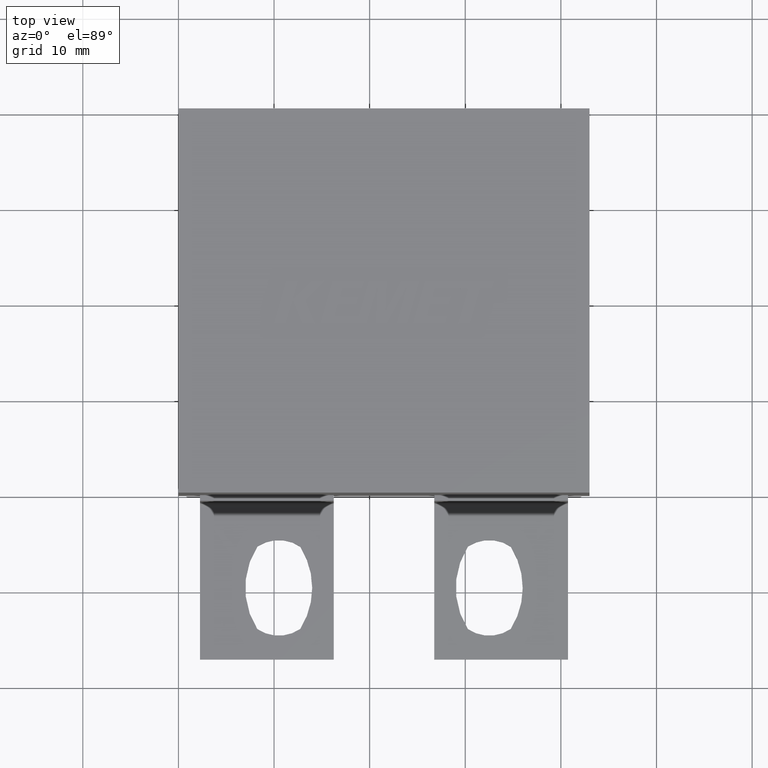
[diagram: clean part render]
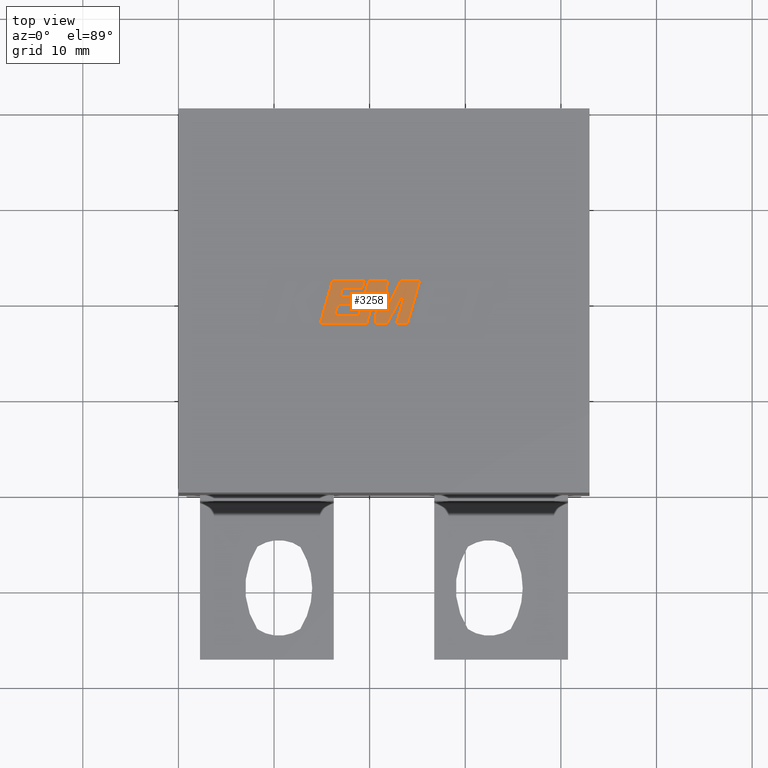
[diagram: same view with one face highlighted and labeled with its STEP entity id]
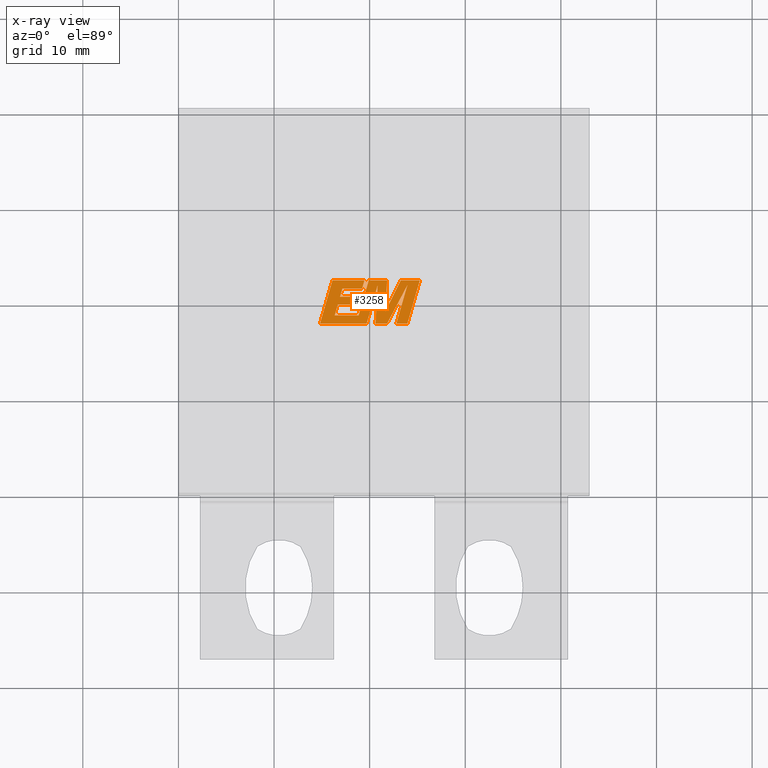
[diagram: x-ray of the same camera — body ghosted, the highlighted face saturated]
A machine part, top view. The second image highlights one B-rep face of the part: STEP entity #3258.
The next image is the same camera in x-ray: the body ghosted, the highlighted face saturated — about 0% of this face is hidden behind the body in this view.
In plain terms, the highlighted planar face has unit normal (0, 0, -1).
Its self-contained STEP definition (entity closure, byte-faithful):
#1 = VECTOR ( 'NONE', #788, 1000.000000000000000 ) ;
#16 = LINE ( 'NONE', #998, #54 ) ;
#17 = EDGE_CURVE ( 'NONE', #3460, #3063, #1209, .T. ) ;
#30 = ORIENTED_EDGE ( 'NONE', *, *, #2800, .T. ) ;
#35 = CARTESIAN_POINT ( 'NONE',  ( 21.65369082282158100, 18.95966520549735200, 20.40500000000000100 ) ) ;
#54 = VECTOR ( 'NONE', #1228, 1000.000000000000000 ) ;
#98 = CARTESIAN_POINT ( 'NONE',  ( 16.34118333098680900, 18.52843981272264200, 20.40500000000000100 ) ) ;
#158 = VERTEX_POINT ( 'NONE', #1292 ) ;
#187 = LINE ( 'NONE', #226, #861 ) ;
#190 = LINE ( 'NONE', #1899, #2466 ) ;
#226 = CARTESIAN_POINT ( 'NONE',  ( 16.34118333098680900, 18.52843981272264200, 20.40500000000000100 ) ) ;
#277 = DIRECTION ( 'NONE',  ( 0.2759782365590804900, 0.9611638845408936300, 0.0000000000000000000 ) ) ;
#318 = VERTEX_POINT ( 'NONE', #1316 ) ;
#353 = VECTOR ( 'NONE', #3078, 1000.000000000000100 ) ;
#382 = ORIENTED_EDGE ( 'NONE', *, *, #431, .T. ) ;
#412 = EDGE_CURVE ( 'NONE', #3278, #3460, #2940, .T. ) ;
#422 = VERTEX_POINT ( 'NONE', #1138 ) ;
#427 = VERTEX_POINT ( 'NONE', #2712 ) ;
#431 = EDGE_CURVE ( 'NONE', #2274, #1600, #1707, .T. ) ;
#443 = ORIENTED_EDGE ( 'NONE', *, *, #3480, .T. ) ;
#444 = LINE ( 'NONE', #1973, #1118 ) ;
#447 = LINE ( 'NONE', #1668, #1798 ) ;
#477 = CARTESIAN_POINT ( 'NONE',  ( 21.82763981081164700, 22.19109090115733800, 20.40500000000000100 ) ) ;
#515 = DIRECTION ( 'NONE',  ( 0.0000000000000000000, 0.0000000000000000000, -1.000000000000000000 ) ) ;
#533 = CARTESIAN_POINT ( 'NONE',  ( 19.45021176289241200, 22.19109090115733800, 20.40500000000000100 ) ) ;
#555 = CARTESIAN_POINT ( 'NONE',  ( 19.67990450997458800, 17.66789999999986400, 20.40500000000000100 ) ) ;
#559 = LINE ( 'NONE', #2688, #2542 ) ;
#569 = EDGE_CURVE ( 'NONE', #1823, #3278, #3483, .T. ) ;
#598 = EDGE_CURVE ( 'NONE', #1600, #2154, #190, .T. ) ;
#622 = VERTEX_POINT ( 'NONE', #1077 ) ;
#687 = VERTEX_POINT ( 'NONE', #2726 ) ;
#722 = ORIENTED_EDGE ( 'NONE', *, *, #1932, .T. ) ;
#737 = VECTOR ( 'NONE', #2657, 1000.000000000000000 ) ;
#739 = DIRECTION ( 'NONE',  ( -1.000000000000000000, 0.0000000000000000000, 0.0000000000000000000 ) ) ;
#788 = DIRECTION ( 'NONE',  ( -1.000000000000000000, 0.0000000000000000000, 0.0000000000000000000 ) ) ;
#857 = EDGE_CURVE ( 'NONE', #622, #422, #2385, .T. ) ;
#861 = VECTOR ( 'NONE', #1839, 1000.000000000000200 ) ;
#862 = CARTESIAN_POINT ( 'NONE',  ( 20.61042077413764800, 17.66789999999986800, 20.40500000000000100 ) ) ;
#870 = CARTESIAN_POINT ( 'NONE',  ( 19.20567927335351000, 21.33012473820824400, 20.40500000000000100 ) ) ;
#872 = EDGE_LOOP ( 'NONE', ( #1493, #3118, #2162, #30, #1085, #2519, #443, #1146, #2462, #722, #2283, #3115, #1851, #1273, #382, #1297, #3004, #3163, #2085, #1655, #3222, #3255, #2039 ) ) ;
#936 = CARTESIAN_POINT ( 'NONE',  ( 18.84146614692435800, 20.48881194576375400, 20.40500000000000100 ) ) ;
#939 = CARTESIAN_POINT ( 'NONE',  ( 16.90005972271343300, 20.48881194576375400, 20.40500000000000100 ) ) ;
#969 = VECTOR ( 'NONE', #2109, 1000.000000000000100 ) ;
#984 = VECTOR ( 'NONE', #277, 1000.000000000000000 ) ;
#993 = FACE_OUTER_BOUND ( 'NONE', #872, .T. ) ;
#998 = CARTESIAN_POINT ( 'NONE',  ( 20.83613884040525800, 21.69477796810506500, 20.40500000000000100 ) ) ;
#1020 = EDGE_CURVE ( 'NONE', #1346, #318, #1700, .T. ) ;
#1022 = CARTESIAN_POINT ( 'NONE',  ( 16.66149613646253900, 19.65262910936985800, 20.40500000000000100 ) ) ;
#1046 = VECTOR ( 'NONE', #1681, 1000.000000000000000 ) ;
#1062 = CARTESIAN_POINT ( 'NONE',  ( -0.06707117159376017900, 1.023740749040429100, 20.40499999999999400 ) ) ;
#1074 = CARTESIAN_POINT ( 'NONE',  ( 17.14486727691953000, 21.33012473820824400, 20.40500000000000100 ) ) ;
#1077 = CARTESIAN_POINT ( 'NONE',  ( 23.95230520040987800, 21.71417002716459500, 20.40500000000000100 ) ) ;
#1084 = LINE ( 'NONE', #1116, #1046 ) ;
#1085 = ORIENTED_EDGE ( 'NONE', *, *, #2872, .T. ) ;
#1116 = CARTESIAN_POINT ( 'NONE',  ( 21.82763981081164700, 22.19109090115733800, 20.40500000000000100 ) ) ;
#1118 = VECTOR ( 'NONE', #1656, 1000.000000000000000 ) ;
#1125 = DIRECTION ( 'NONE',  ( -0.4443210308329073600, -0.8958676361827023800, 0.0000000000000000000 ) ) ;
#1129 = EDGE_CURVE ( 'NONE', #1250, #3215, #559, .T. ) ;
#1138 = CARTESIAN_POINT ( 'NONE',  ( 22.79034952489388000, 17.66789999999986800, 20.40500000000000100 ) ) ;
#1145 = LINE ( 'NONE', #1713, #353 ) ;
#1146 = ORIENTED_EDGE ( 'NONE', *, *, #3124, .T. ) ;
#1199 = EDGE_CURVE ( 'NONE', #2154, #687, #2005, .T. ) ;
#1209 = LINE ( 'NONE', #870, #2397 ) ;
#1228 = DIRECTION ( 'NONE',  ( -0.05596501978068312000, -0.9984327301130245800, 0.0000000000000000000 ) ) ;
#1250 = VERTEX_POINT ( 'NONE', #35 ) ;
#1254 = CARTESIAN_POINT ( 'NONE',  ( 25.24021298723882700, 22.19109090115733800, 20.40500000000000100 ) ) ;
#1269 = LINE ( 'NONE', #1833, #1 ) ;
#1273 = ORIENTED_EDGE ( 'NONE', *, *, #3457, .T. ) ;
#1292 = CARTESIAN_POINT ( 'NONE',  ( 19.90137283075741300, 22.19109090115733800, 20.40500000000000100 ) ) ;
#1297 = ORIENTED_EDGE ( 'NONE', *, *, #598, .T. ) ;
#1299 = VERTEX_POINT ( 'NONE', #2753 ) ;
#1313 = PLANE ( 'NONE',  #1937 ) ;
#1316 = CARTESIAN_POINT ( 'NONE',  ( 23.25637222146379900, 22.19109090115733800, 20.40500000000000100 ) ) ;
#1325 = VECTOR ( 'NONE', #3326, 1000.000000000000100 ) ;
#1327 = CARTESIAN_POINT ( 'NONE',  ( 17.14486727691953000, 21.33012473820824400, 20.40500000000000100 ) ) ;
#1346 = VERTEX_POINT ( 'NONE', #2228 ) ;
#1410 = EDGE_CURVE ( 'NONE', #1299, #1346, #1145, .T. ) ;
#1438 = VERTEX_POINT ( 'NONE', #2020 ) ;
#1439 = LINE ( 'NONE', #533, #737 ) ;
#1446 = DIRECTION ( 'NONE',  ( -0.2765379750249964400, -0.9610029908221277000, 0.0000000000000000000 ) ) ;
#1454 = DIRECTION ( 'NONE',  ( -1.000000000000000000, 0.0000000000000000000, 0.0000000000000000000 ) ) ;
#1488 = DIRECTION ( 'NONE',  ( 1.000000000000000000, 0.0000000000000000000, 0.0000000000000000000 ) ) ;
#1492 = EDGE_CURVE ( 'NONE', #422, #1299, #2494, .T. ) ;
#1493 = ORIENTED_EDGE ( 'NONE', *, *, #1020, .T. ) ;
#1533 = EDGE_CURVE ( 'NONE', #1556, #2950, #1269, .T. ) ;
#1534 = CARTESIAN_POINT ( 'NONE',  ( 18.60262749600601500, 19.65262910936985800, 20.40500000000000100 ) ) ;
#1556 = VERTEX_POINT ( 'NONE', #2676 ) ;
#1559 = CARTESIAN_POINT ( 'NONE',  ( 14.80703765007827100, 17.66789999999986400, 20.40500000000000100 ) ) ;
#1600 = VERTEX_POINT ( 'NONE', #1559 ) ;
#1610 = DIRECTION ( 'NONE',  ( 1.000000000000000000, 0.0000000000000000000, 0.0000000000000000000 ) ) ;
#1655 = ORIENTED_EDGE ( 'NONE', *, *, #3166, .T. ) ;
#1656 = DIRECTION ( 'NONE',  ( -0.2762517575166429900, -0.9610853065513830200, 0.0000000000000000000 ) ) ;
#1663 = VECTOR ( 'NONE', #3195, 1000.000000000000100 ) ;
#1668 = CARTESIAN_POINT ( 'NONE',  ( 23.25637222146379900, 22.19109090115733800, 20.40500000000000100 ) ) ;
#1681 = DIRECTION ( 'NONE',  ( -1.000000000000000000, 0.0000000000000000000, 0.0000000000000000000 ) ) ;
#1683 = LINE ( 'NONE', #1534, #969 ) ;
#1684 = CARTESIAN_POINT ( 'NONE',  ( 23.95230520040987800, 21.71417002716459500, 20.40500000000000100 ) ) ;
#1690 = VECTOR ( 'NONE', #1454, 1000.000000000000000 ) ;
#1700 = LINE ( 'NONE', #1254, #3268 ) ;
#1707 = LINE ( 'NONE', #3031, #2685 ) ;
#1713 = CARTESIAN_POINT ( 'NONE',  ( 23.93976225156585600, 17.66789999999986800, 20.40500000000000100 ) ) ;
#1722 = VECTOR ( 'NONE', #3207, 1000.000000000000000 ) ;
#1798 = VECTOR ( 'NONE', #1125, 1000.000000000000100 ) ;
#1823 = VERTEX_POINT ( 'NONE', #3306 ) ;
#1833 = CARTESIAN_POINT ( 'NONE',  ( 18.84859032180306200, 18.52843981272264200, 20.40500000000000100 ) ) ;
#1837 = LINE ( 'NONE', #1022, #2469 ) ;
#1839 = DIRECTION ( 'NONE',  ( 0.2740217765954066100, 0.9617234872620595800, 0.0000000000000000000 ) ) ;
#1851 = ORIENTED_EDGE ( 'NONE', *, *, #17, .T. ) ;
#1899 = CARTESIAN_POINT ( 'NONE',  ( 14.80703765007827100, 17.66789999999986400, 20.40500000000000100 ) ) ;
#1917 = DIRECTION ( 'NONE',  ( 0.05375259206908346300, 0.9985542843760947300, 0.0000000000000000000 ) ) ;
#1932 = EDGE_CURVE ( 'NONE', #2696, #1823, #2200, .T. ) ;
#1937 = AXIS2_PLACEMENT_3D ( 'NONE', #1062, #515, #2948 ) ;
#1965 = VERTEX_POINT ( 'NONE', #3110 ) ;
#1973 = CARTESIAN_POINT ( 'NONE',  ( 19.90137283075741300, 22.19109090115733800, 20.40500000000000100 ) ) ;
#1978 = CARTESIAN_POINT ( 'NONE',  ( 16.10862990775428500, 22.19109090115733800, 20.40500000000000100 ) ) ;
#2005 = LINE ( 'NONE', #555, #984 ) ;
#2020 = CARTESIAN_POINT ( 'NONE',  ( 18.60262749600601500, 19.65262910936985800, 20.40500000000000100 ) ) ;
#2039 = ORIENTED_EDGE ( 'NONE', *, *, #1410, .T. ) ;
#2042 = EDGE_CURVE ( 'NONE', #1438, #2696, #1683, .T. ) ;
#2054 = CARTESIAN_POINT ( 'NONE',  ( 16.66149613646253900, 19.65262910936985800, 20.40500000000000100 ) ) ;
#2059 = CARTESIAN_POINT ( 'NONE',  ( 19.45021176289241200, 22.19109090115733800, 20.40500000000000100 ) ) ;
#2085 = ORIENTED_EDGE ( 'NONE', *, *, #2265, .T. ) ;
#2109 = DIRECTION ( 'NONE',  ( 0.2746459304916928400, 0.9615454294334471200, 0.0000000000000000000 ) ) ;
#2154 = VERTEX_POINT ( 'NONE', #2869 ) ;
#2162 = ORIENTED_EDGE ( 'NONE', *, *, #1129, .T. ) ;
#2200 = LINE ( 'NONE', #936, #1690 ) ;
#2228 = CARTESIAN_POINT ( 'NONE',  ( 25.24021298723882700, 22.19109090115733800, 20.40500000000000100 ) ) ;
#2265 = EDGE_CURVE ( 'NONE', #1965, #427, #3283, .T. ) ;
#2274 = VERTEX_POINT ( 'NONE', #1978 ) ;
#2283 = ORIENTED_EDGE ( 'NONE', *, *, #569, .T. ) ;
#2353 = CARTESIAN_POINT ( 'NONE',  ( 18.84146614692435800, 20.48881194576375400, 20.40500000000000100 ) ) ;
#2385 = LINE ( 'NONE', #1684, #1325 ) ;
#2391 = LINE ( 'NONE', #3183, #1663 ) ;
#2397 = VECTOR ( 'NONE', #2783, 1000.000000000000100 ) ;
#2400 = DIRECTION ( 'NONE',  ( 0.2793947940878301900, 0.9601763114327591700, 0.0000000000000000000 ) ) ;
#2462 = ORIENTED_EDGE ( 'NONE', *, *, #2042, .T. ) ;
#2466 = VECTOR ( 'NONE', #2673, 1000.000000000000000 ) ;
#2469 = VECTOR ( 'NONE', #1610, 1000.000000000000000 ) ;
#2494 = LINE ( 'NONE', #2652, #2921 ) ;
#2519 = ORIENTED_EDGE ( 'NONE', *, *, #1533, .T. ) ;
#2542 = VECTOR ( 'NONE', #1917, 1000.000000000000000 ) ;
#2612 = VERTEX_POINT ( 'NONE', #2054 ) ;
#2652 = CARTESIAN_POINT ( 'NONE',  ( 22.79034952489388000, 17.66789999999986800, 20.40500000000000100 ) ) ;
#2657 = DIRECTION ( 'NONE',  ( -1.000000000000000000, 0.0000000000000000000, 0.0000000000000000000 ) ) ;
#2673 = DIRECTION ( 'NONE',  ( 1.000000000000000000, 0.0000000000000000000, 0.0000000000000000000 ) ) ;
#2676 = CARTESIAN_POINT ( 'NONE',  ( 18.84859032180306200, 18.52843981272264200, 20.40500000000000100 ) ) ;
#2682 = CARTESIAN_POINT ( 'NONE',  ( 19.20567927335351000, 21.33012473820824400, 20.40500000000000100 ) ) ;
#2685 = VECTOR ( 'NONE', #1446, 1000.000000000000100 ) ;
#2688 = CARTESIAN_POINT ( 'NONE',  ( 21.65369082282158100, 18.95966520549735200, 20.40500000000000100 ) ) ;
#2696 = VERTEX_POINT ( 'NONE', #2353 ) ;
#2712 = CARTESIAN_POINT ( 'NONE',  ( 21.81626301737630400, 17.66789999999986800, 20.40500000000000100 ) ) ;
#2726 = CARTESIAN_POINT ( 'NONE',  ( 20.83613884040525800, 21.69477796810506500, 20.40500000000000100 ) ) ;
#2731 = DIRECTION ( 'NONE',  ( 1.000000000000000000, 0.0000000000000000000, 0.0000000000000000000 ) ) ;
#2753 = CARTESIAN_POINT ( 'NONE',  ( 23.93976225156585600, 17.66789999999986800, 20.40500000000000100 ) ) ;
#2783 = DIRECTION ( 'NONE',  ( 0.2732148821746313000, 0.9619530280415474800, 0.0000000000000000000 ) ) ;
#2800 = EDGE_CURVE ( 'NONE', #3215, #158, #1084, .T. ) ;
#2803 = EDGE_CURVE ( 'NONE', #318, #1250, #447, .T. ) ;
#2869 = CARTESIAN_POINT ( 'NONE',  ( 19.67990450997458800, 17.66789999999986400, 20.40500000000000100 ) ) ;
#2872 = EDGE_CURVE ( 'NONE', #158, #1556, #444, .T. ) ;
#2921 = VECTOR ( 'NONE', #1488, 1000.000000000000000 ) ;
#2940 = LINE ( 'NONE', #1074, #3068 ) ;
#2948 = DIRECTION ( 'NONE',  ( -1.000000000000000000, 0.0000000000000000000, 0.0000000000000000000 ) ) ;
#2950 = VERTEX_POINT ( 'NONE', #98 ) ;
#3004 = ORIENTED_EDGE ( 'NONE', *, *, #1199, .T. ) ;
#3031 = CARTESIAN_POINT ( 'NONE',  ( 16.10862990775428500, 22.19109090115733800, 20.40500000000000100 ) ) ;
#3062 = EDGE_CURVE ( 'NONE', #687, #1965, #16, .T. ) ;
#3063 = VERTEX_POINT ( 'NONE', #2059 ) ;
#3068 = VECTOR ( 'NONE', #2731, 1000.000000000000000 ) ;
#3078 = DIRECTION ( 'NONE',  ( 0.2763139702539127400, 0.9610674221107069500, 0.0000000000000000000 ) ) ;
#3110 = CARTESIAN_POINT ( 'NONE',  ( 20.61042077413764800, 17.66789999999986800, 20.40500000000000100 ) ) ;
#3115 = ORIENTED_EDGE ( 'NONE', *, *, #412, .T. ) ;
#3118 = ORIENTED_EDGE ( 'NONE', *, *, #2803, .T. ) ;
#3124 = EDGE_CURVE ( 'NONE', #2612, #1438, #1837, .T. ) ;
#3163 = ORIENTED_EDGE ( 'NONE', *, *, #3062, .T. ) ;
#3166 = EDGE_CURVE ( 'NONE', #427, #622, #2391, .T. ) ;
#3183 = CARTESIAN_POINT ( 'NONE',  ( 21.81626301737630400, 17.66789999999986800, 20.40500000000000100 ) ) ;
#3191 = VECTOR ( 'NONE', #2400, 1000.000000000000200 ) ;
#3195 = DIRECTION ( 'NONE',  ( 0.4668459304955213100, 0.8843386665637610300, 0.0000000000000000000 ) ) ;
#3207 = DIRECTION ( 'NONE',  ( 1.000000000000000000, 0.0000000000000000000, 0.0000000000000000000 ) ) ;
#3215 = VERTEX_POINT ( 'NONE', #477 ) ;
#3222 = ORIENTED_EDGE ( 'NONE', *, *, #857, .T. ) ;
#3255 = ORIENTED_EDGE ( 'NONE', *, *, #1492, .T. ) ;
#3258 = ADVANCED_FACE ( 'NONE', ( #993 ), #1313, .F. ) ;
#3268 = VECTOR ( 'NONE', #739, 1000.000000000000000 ) ;
#3278 = VERTEX_POINT ( 'NONE', #1327 ) ;
#3283 = LINE ( 'NONE', #862, #1722 ) ;
#3306 = CARTESIAN_POINT ( 'NONE',  ( 16.90005972271343300, 20.48881194576375400, 20.40500000000000100 ) ) ;
#3326 = DIRECTION ( 'NONE',  ( -0.2760118818968561000, -0.9611542233438689100, 0.0000000000000000000 ) ) ;
#3457 = EDGE_CURVE ( 'NONE', #3063, #2274, #1439, .T. ) ;
#3460 = VERTEX_POINT ( 'NONE', #2682 ) ;
#3480 = EDGE_CURVE ( 'NONE', #2950, #2612, #187, .T. ) ;
#3483 = LINE ( 'NONE', #939, #3191 ) ;